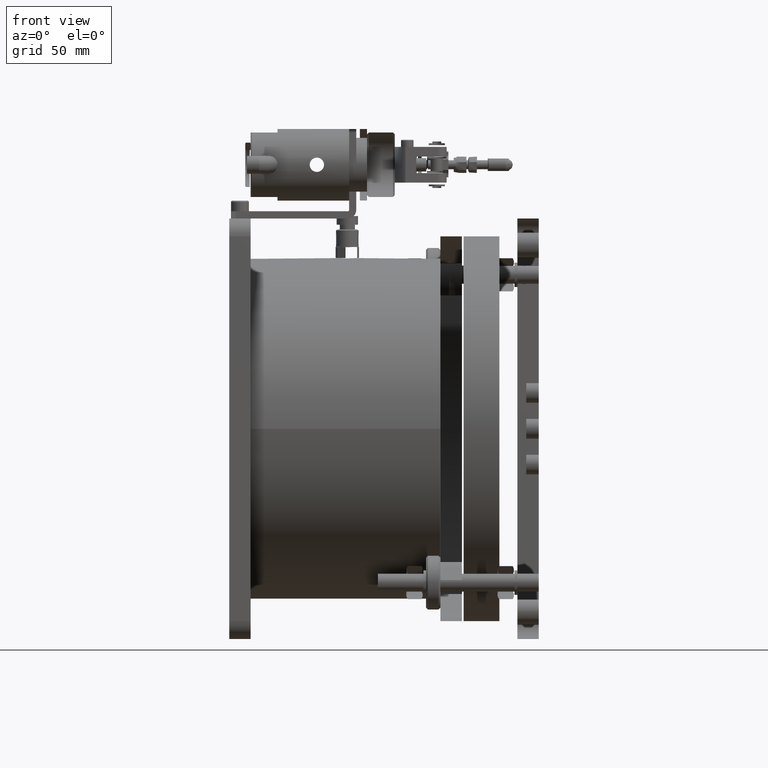
[diagram: clean part render]
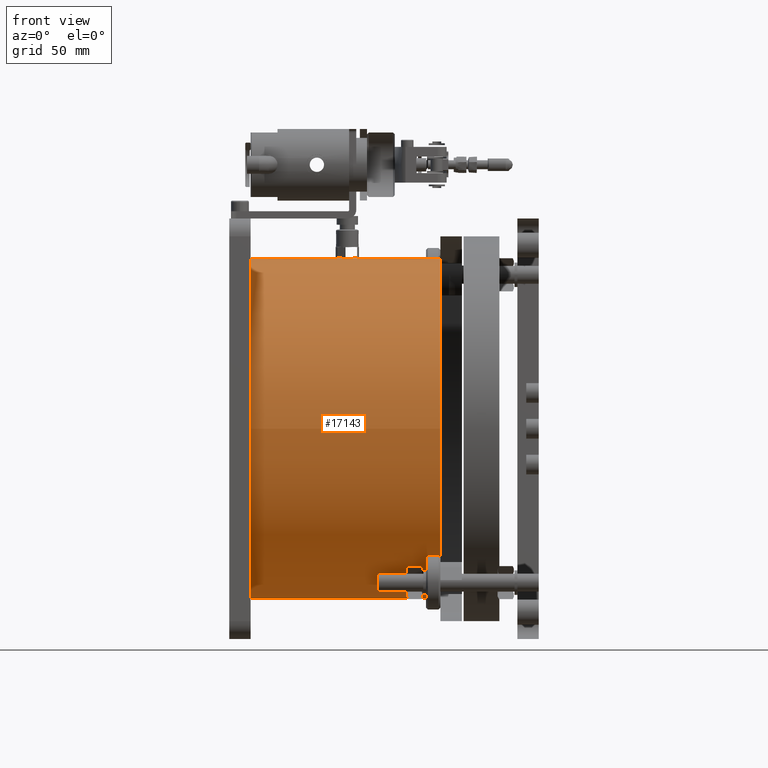
[diagram: same view with one face highlighted and labeled with its STEP entity id]
A machine part, front view. The second image highlights one B-rep face of the part: STEP entity #17143.
In plain terms, the highlighted cylindrical surface (bore or boss wall) has radius 95.35 mm, axis along (-1, -0, -0).
Its self-contained STEP definition (entity closure, byte-faithful):
#287 = CARTESIAN_POINT ( 'NONE',  ( 506.2272305884217758, 95.34008537257338389, 590.1842168335766701 ) ) ;
#419 = CARTESIAN_POINT ( 'NONE',  ( 471.3285649962770094, 95.32880450160507735, 593.6785264008909735 ) ) ;
#714 = CARTESIAN_POINT ( 'NONE',  ( 511.8858485565874616, 95.25686555371100894, 595.8393987833387655 ) ) ;
#974 = CARTESIAN_POINT ( 'NONE',  ( 512.9233767720821788, 95.30252700481172212, 594.6574488049393494 ) ) ;
#1038 = CARTESIAN_POINT ( 'NONE',  ( 467.9586205573967277, 95.30368048308380935, 588.6377040912301482 ) ) ;
#1097 = CARTESIAN_POINT ( 'NONE',  ( 470.6323716828332522, -3.483568783838560279, 686.8964837836100514 ) ) ;
#1239 = B_SPLINE_CURVE_WITH_KNOTS ( 'NONE', 3,
 ( #14142, #23447, #419, #8190, #4374, #12116, #21922, #19885, #2467, #10210, #4501, #3342, #24084, #6906, #18345, #16446, #4749, #1310 ),
 .UNSPECIFIED., .F., .F.,
 ( 4, 2, 2, 2, 2, 2, 2, 2, 4 ),
 ( 0.000000000000000000, 0.1250000000000000000, 0.2500000000000000000, 0.3750000000000000000, 0.5000000000000000000, 0.6250000000000000000, 0.7500000000000000000, 0.8750000000000000000, 1.000000000000000000 ),
 .UNSPECIFIED. ) ;
#1289 = CARTESIAN_POINT ( 'NONE',  ( 519.4299721316714340, -3.376455812154142719E-14, 591.6094016609060873 ) ) ;
#1310 = CARTESIAN_POINT ( 'NONE',  ( 463.4299721316713772, 95.34444491489904294, 592.6386362647590431 ) ) ;
#1414 = CARTESIAN_POINT ( 'NONE',  ( 464.2272305897788556, 95.34008537256275417, 590.1842168330140339 ) ) ;
#1439 = CARTESIAN_POINT ( 'NONE',  ( 470.9239069628630432, 0.9890932422857512396, 686.9555298706864050 ) ) ;
#1533 = CARTESIAN_POINT ( 'NONE',  ( 466.8984769917884705, 95.30369665933100976, 588.6382229161027908 ) ) ;
#1732 = CARTESIAN_POINT ( 'NONE',  ( 463.4299721316714340, -1.029234603853084629, 686.9538465758053007 ) ) ;
#2429 = CARTESIAN_POINT ( 'NONE',  ( 519.4299721316714340, -95.35000000000002274, 591.6094016609060873 ) ) ;
#2458 = CARTESIAN_POINT ( 'NONE',  ( 508.3883596765098787, 95.30702549985960559, 588.7398020571347388 ) ) ;
#2467 = CARTESIAN_POINT ( 'NONE',  ( 467.9638440049063206, 95.21736141317494173, 596.6369841590174019 ) ) ;
#2509 = CARTESIAN_POINT ( 'NONE',  ( 511.4540467252851386, 95.24307376637665357, 596.1283459639569173 ) ) ;
#2748 = EDGE_CURVE ( 'NONE', #4775, #11069, #3440, .T. ) ;
#3196 = DIRECTION ( 'NONE',  ( -1.000000000000000000, -4.645723651828303889E-16, -5.652748816845448892E-17 ) ) ;
#3342 = CARTESIAN_POINT ( 'NONE',  ( 465.4114346384064334, 95.24291984154038460, 596.1315489414982949 ) ) ;
#3354 = CARTESIAN_POINT ( 'NONE',  ( 469.8868087496150565, 2.171873723533278788, 686.9354014847062899 ) ) ;
#3440 = B_SPLINE_CURVE_WITH_KNOTS ( 'NONE', 3,
 ( #6886, #5104, #20612, #5354, #1414, #9172, #24554, #13095, #1533, #1038, #9288, #22904, #10701, #20365, #17040, #7391, #15120, #4982 ),
 .UNSPECIFIED., .F., .F.,
 ( 4, 2, 2, 2, 2, 2, 2, 2, 4 ),
 ( 0.000000000000000000, 0.1250000000000000000, 0.2500000000000000000, 0.3750000000000000000, 0.5000000000000000000, 0.6250000000000000000, 0.7500000000000000000, 0.8750000000000000000, 1.000000000000000000 ),
 .UNSPECIFIED. ) ;
#3510 = CARTESIAN_POINT ( 'NONE',  ( 471.4297831293740728, -1.560893718183094636, 686.9480994348200511 ) ) ;
#3808 = VERTEX_POINT ( 'NONE', #6088 ) ;
#3853 = CARTESIAN_POINT ( 'NONE',  ( 464.9790422405529284, 2.176495573608332457, 686.9352945924350706 ) ) ;
#4026 = ORIENTED_EDGE ( 'NONE', *, *, #4747, .T. ) ;
#4285 = AXIS2_PLACEMENT_3D ( 'NONE', #15680, #25112, #7704 ) ;
#4374 = CARTESIAN_POINT ( 'NONE',  ( 470.6349240465373214, 95.28720851536324687, 595.0895171938833528 ) ) ;
#4409 = CARTESIAN_POINT ( 'NONE',  ( 513.3285649963834203, 95.32880450161199803, 593.6785264006339276 ) ) ;
#4501 = CARTESIAN_POINT ( 'NONE',  ( 466.3911783938393114, 95.22283003441678773, 596.5364937247941270 ) ) ;
#4638 = B_SPLINE_CURVE_WITH_KNOTS ( 'NONE', 3,
 ( #12107, #8561, #16307, #6024, #287, #13888, #21669, #2458, #13762, #11869, #8055, #10201, #16813, #18852, #14388, #22412, #8699, #6784 ),
 .UNSPECIFIED., .F., .F.,
 ( 4, 2, 2, 2, 2, 2, 2, 2, 4 ),
 ( 0.000000000000000000, 0.1250000000000000000, 0.2500000000000000000, 0.3750000000000000000, 0.5000000000000000000, 0.6250000000000000000, 0.7500000000000000000, 0.8750000000000000000, 1.000000000000000000 ),
 .UNSPECIFIED. ) ;
#4671 = CARTESIAN_POINT ( 'NONE',  ( 513.4299721316713203, 95.33872454962690313, 593.1685495124683030 ) ) ;
#4747 = EDGE_CURVE ( 'NONE', #15046, #11961, #24596, .T. ) ;
#4749 = CARTESIAN_POINT ( 'NONE',  ( 463.4299721316714340, 95.33870312975845707, 593.1705337689872977 ) ) ;
#4775 = VERTEX_POINT ( 'NONE', #23985 ) ;
#4926 = EDGE_CURVE ( 'NONE', #23657, #23657, #13191, .T. ) ;
#4982 = CARTESIAN_POINT ( 'NONE',  ( 471.4299721316713772, 95.34444491489904294, 592.6386362647590431 ) ) ;
#5104 = CARTESIAN_POINT ( 'NONE',  ( 463.4299721316713772, 95.35017434631605227, 592.1078831632898982 ) ) ;
#5256 = CARTESIAN_POINT ( 'NONE',  ( 469.4544924424077976, 2.461579334480986869, 686.9278393108232876 ) ) ;
#5354 = CARTESIAN_POINT ( 'NONE',  ( 463.9379388685981667, 95.34609297692958307, 590.6169173136520385 ) ) ;
#5364 = CIRCLE ( 'NONE', #19570, 95.34999999999999432 ) ;
#5430 = CARTESIAN_POINT ( 'NONE',  ( 505.4299721316713772, 95.34444491489905715, 592.6386362647590431 ) ) ;
#6024 = CARTESIAN_POINT ( 'NONE',  ( 505.9379388696588649, 95.34609297691982022, 590.6169173117964419 ) ) ;
#6088 = CARTESIAN_POINT ( 'NONE',  ( 413.4299721316714908, -95.35000000000007958, 591.6094016609060873 ) ) ;
#6705 = B_SPLINE_CURVE_WITH_KNOTS ( 'NONE', 3,
 ( #15015, #15401, #23178, #13503, #21275, #3853, #20765, #9684, #24582, #7168, #22677, #5256, #3354, #11107, #1439, #16947, #21900, #17955 ),
 .UNSPECIFIED., .F., .F.,
 ( 4, 2, 2, 2, 2, 2, 2, 2, 4 ),
 ( 0.000000000000000000, 0.1249999999999999167, 0.2499999999999998335, 0.3749999999999998335, 0.4999999999999998890, 0.6249999999999998890, 0.7499999999999998890, 0.8750000000000000000, 1.000000000000000000 ),
 .UNSPECIFIED. ) ;
#6784 = CARTESIAN_POINT ( 'NONE',  ( 513.4299721316714340, 95.34444491489905715, 592.6386362647590431 ) ) ;
#6886 = CARTESIAN_POINT ( 'NONE',  ( 463.4299721316713772, 95.34444491489904294, 592.6386362647590431 ) ) ;
#6906 = CARTESIAN_POINT ( 'NONE',  ( 464.2286039157403366, 95.28703490553813538, 595.0941934759268861 ) ) ;
#7080 = CARTESIAN_POINT ( 'NONE',  ( 469.4481092164074880, -4.522325930600010757, 686.8523129581913054 ) ) ;
#7168 = CARTESIAN_POINT ( 'NONE',  ( 467.9644152945096494, 2.970972533480765509, 686.9131047496144902 ) ) ;
#7324 = CARTESIAN_POINT ( 'NONE',  ( 471.4299718782690434, -1.030658325071345915, 686.9538311962332955 ) ) ;
#7391 = CARTESIAN_POINT ( 'NONE',  ( 471.3284980189881708, 95.35125857999666721, 591.5980388060507948 ) ) ;
#7463 = CARTESIAN_POINT ( 'NONE',  ( 466.3878104963110331, -4.926159053296679247, 686.8322805963100564 ) ) ;
#7704 = DIRECTION ( 'NONE',  ( 0.000000000000000000, -1.000000000000000000, 0.000000000000000000 ) ) ;
#8055 = CARTESIAN_POINT ( 'NONE',  ( 510.4688009217263129, 95.30700138791777931, 588.7390038224536966 ) ) ;
#8190 = CARTESIAN_POINT ( 'NONE',  ( 470.9233767721888171, 95.30252700481855754, 594.6574488046819624 ) ) ;
#8363 = CARTESIAN_POINT ( 'NONE',  ( 507.4114346375626496, 95.24291984155770763, 596.1315489411497310 ) ) ;
#8389 = DIRECTION ( 'NONE',  ( 5.821830228763275481E-16, -1.000000000000000000, 0.000000000000000000 ) ) ;
#8561 = CARTESIAN_POINT ( 'NONE',  ( 505.4299721316713772, 95.35017434632366928, 592.1078831625862904 ) ) ;
#8614 = CARTESIAN_POINT ( 'NONE',  ( 505.9401704591016937, 95.30232061101406771, 594.6641518544640803 ) ) ;
#8699 = CARTESIAN_POINT ( 'NONE',  ( 513.4299721316716614, 95.35017014061355667, 592.1082727638481629 ) ) ;
#8862 = CARTESIAN_POINT ( 'NONE',  ( 466.8980653645520533, -5.027885252978316011, 686.8267470866580879 ) ) ;
#9052 = DIRECTION ( 'NONE',  ( 0.000000000000000000, -1.000000000000000000, 0.000000000000000000 ) ) ;
#9172 = CARTESIAN_POINT ( 'NONE',  ( 464.9768823971682536, 95.32593182093114592, 589.4346021040752248 ) ) ;
#9288 = CARTESIAN_POINT ( 'NONE',  ( 468.4688009209471034, 95.30700138789595144, 588.7390038216746007 ) ) ;
#9352 = CARTESIAN_POINT ( 'NONE',  ( 469.8816004070379790, -4.233343192373174801, 686.8661183602878282 ) ) ;
#9429 = EDGE_CURVE ( 'NONE', #14537, #16681, #6705, .T. ) ;
#9684 = CARTESIAN_POINT ( 'NONE',  ( 466.3922109618487184, 2.870732411434197662, 686.9163928389477860 ) ) ;
#10076 = ORIENTED_EDGE ( 'NONE', *, *, #4926, .T. ) ;
#10201 = CARTESIAN_POINT ( 'NONE',  ( 511.4494012937805678, 95.31835800894832289, 589.1447873329613003 ) ) ;
#10210 = CARTESIAN_POINT ( 'NONE',  ( 466.9027402260875306, 95.21730737789775390, 596.6380074284550119 ) ) ;
#10701 = CARTESIAN_POINT ( 'NONE',  ( 469.8823687421921136, 95.32591958489128103, 589.4339827836631684 ) ) ;
#10944 = FACE_BOUND ( 'NONE', #14625, .T. ) ;
#11069 = VERTEX_POINT ( 'NONE', #13886 ) ;
#11107 = CARTESIAN_POINT ( 'NONE',  ( 470.6354712155451239, 1.421599398891101540, 686.9495418591833413 ) ) ;
#11378 = CARTESIAN_POINT ( 'NONE',  ( 463.5315924437289254, -2.070485578673760596, 686.9381802901875744 ) ) ;
#11869 = CARTESIAN_POINT ( 'NONE',  ( 509.9586205562947043, 95.30368048308383777, 588.6377040912307166 ) ) ;
#11961 = VERTEX_POINT ( 'NONE', #5430 ) ;
#12038 = EDGE_CURVE ( 'NONE', #16681, #14537, #13646, .T. ) ;
#12107 = CARTESIAN_POINT ( 'NONE',  ( 505.4299721316713772, 95.34444491489905715, 592.6386362647590431 ) ) ;
#12116 = CARTESIAN_POINT ( 'NONE',  ( 469.8858485572336576, 95.25686555373107467, 595.8393987828422951 ) ) ;
#12153 = CARTESIAN_POINT ( 'NONE',  ( 505.4299721316713772, 95.34444491489905715, 592.6386362647590431 ) ) ;
#12289 = CARTESIAN_POINT ( 'NONE',  ( 506.9784919632983815, 95.25671622187633147, 595.8426993953733017 ) ) ;
#12504 = ORIENTED_EDGE ( 'NONE', *, *, #9429, .T. ) ;
#12552 = DIRECTION ( 'NONE',  ( 1.000000000000000000, 4.645723651828303889E-16, 5.652748816845448892E-17 ) ) ;
#12651 = CARTESIAN_POINT ( 'NONE',  ( 513.4299721316714340, 95.34444491489905715, 592.6386362647590431 ) ) ;
#13095 = CARTESIAN_POINT ( 'NONE',  ( 466.3883596765098787, 95.30702549985959138, 588.7398020571348525 ) ) ;
#13191 = CIRCLE ( 'NONE', #4285, 95.34999999999999432 ) ;
#13503 = CARTESIAN_POINT ( 'NONE',  ( 463.9394908145150112, 0.9950889160062802441, 686.9554653018400359 ) ) ;
#13646 = B_SPLINE_CURVE_WITH_KNOTS ( 'NONE', 3,
 ( #7324, #3510, #20551, #19023, #1097, #9352, #7080, #17110, #24881, #8862, #7463, #15188, #24363, #22971, #21048, #11378, #16741, #1732 ),
 .UNSPECIFIED., .F., .F.,
 ( 4, 2, 2, 2, 2, 2, 2, 2, 4 ),
 ( 0.000000000000000000, 0.1250000000000000278, 0.2500000000000000555, 0.3750000000000001110, 0.5000000000000001110, 0.6250000000000001110, 0.7500000000000002220, 0.8750000000000001110, 1.000000000000000000 ),
 .UNSPECIFIED. ) ;
#13762 = CARTESIAN_POINT ( 'NONE',  ( 508.8984769928907212, 95.30369665933099554, 588.6382229161021087 ) ) ;
#13886 = CARTESIAN_POINT ( 'NONE',  ( 471.4299721316713772, 95.34444491489904294, 592.6386362647590431 ) ) ;
#13888 = CARTESIAN_POINT ( 'NONE',  ( 506.9768823985251061, 95.32593182092053041, 589.4346021035125887 ) ) ;
#14014 = CARTESIAN_POINT ( 'NONE',  ( 513.4299721316714340, 95.34444491489905715, 592.6386362647590431 ) ) ;
#14142 = CARTESIAN_POINT ( 'NONE',  ( 471.4299721316713772, 95.34444491489904294, 592.6386362647590431 ) ) ;
#14388 = CARTESIAN_POINT ( 'NONE',  ( 512.9226015682554589, 95.34610479145781881, 590.6179668415504693 ) ) ;
#14537 = VERTEX_POINT ( 'NONE', #16415 ) ;
#14625 = EDGE_LOOP ( 'NONE', ( #23863, #12504 ) ) ;
#14986 = FACE_BOUND ( 'NONE', #17009, .T. ) ;
#15015 = CARTESIAN_POINT ( 'NONE',  ( 463.4299721316714340, -1.029234603853084629, 686.9538465758053007 ) ) ;
#15046 = VERTEX_POINT ( 'NONE', #14014 ) ;
#15120 = CARTESIAN_POINT ( 'NONE',  ( 471.4299721316714340, 95.35017014062252372, 592.1082727630122235 ) ) ;
#15188 = CARTESIAN_POINT ( 'NONE',  ( 465.4088675950624747, -4.520624229369735403, 686.8523944338227238 ) ) ;
#15401 = CARTESIAN_POINT ( 'NONE',  ( 463.4299721316714908, -0.4973436565077955507, 686.9595882901649020 ) ) ;
#15680 = CARTESIAN_POINT ( 'NONE',  ( 519.4299721316714340, -3.376455812154140826E-14, 591.6094016609060873 ) ) ;
#16099 = CARTESIAN_POINT ( 'NONE',  ( 505.5320117971574518, 95.32873649436868391, 593.6820354869313405 ) ) ;
#16307 = CARTESIAN_POINT ( 'NONE',  ( 505.5318641612719262, 95.35125750772516540, 591.5966406984459809 ) ) ;
#16359 = CARTESIAN_POINT ( 'NONE',  ( 510.4743944152891686, 95.22290552094682425, 596.5350713849513795 ) ) ;
#16415 = CARTESIAN_POINT ( 'NONE',  ( 463.4299721316714340, -1.029234603853084629, 686.9538465758053007 ) ) ;
#16446 = CARTESIAN_POINT ( 'NONE',  ( 463.5320117971574518, 95.32873649437840413, 593.6820354865682248 ) ) ;
#16484 = CARTESIAN_POINT ( 'NONE',  ( 509.9638440049063774, 95.21736141317495594, 596.6369841590172882 ) ) ;
#16681 = VERTEX_POINT ( 'NONE', #19323 ) ;
#16741 = CARTESIAN_POINT ( 'NONE',  ( 463.4299721316714908, -1.559994229523427256, 686.9481170739602476 ) ) ;
#16813 = CARTESIAN_POINT ( 'NONE',  ( 511.8823687416008852, 95.32591958488013972, 589.4339827830721106 ) ) ;
#16947 = CARTESIAN_POINT ( 'NONE',  ( 471.3289853120377870, 0.009371936181396065685, 686.9606595561466520 ) ) ;
#17009 = EDGE_LOOP ( 'NONE', ( #22916, #17225 ) ) ;
#17040 = CARTESIAN_POINT ( 'NONE',  ( 470.9226015682554021, 95.34610479146219575, 590.6179668423864086 ) ) ;
#17110 = CARTESIAN_POINT ( 'NONE',  ( 468.4684421051153436, -4.927212717108908180, 686.8322253905425896 ) ) ;
#17143 = ADVANCED_FACE ( 'NONE', ( #24301, #14986, #20869, #22278, #10944 ), #18705, .T. ) ;
#17166 = AXIS2_PLACEMENT_3D ( 'NONE', #1289, #3196, #9052 ) ;
#17225 = ORIENTED_EDGE ( 'NONE', *, *, #2748, .T. ) ;
#17575 = ORIENTED_EDGE ( 'NONE', *, *, #22153, .T. ) ;
#17955 = CARTESIAN_POINT ( 'NONE',  ( 471.4299718782690434, -1.030658325071345915, 686.9538311962332955 ) ) ;
#18258 = CARTESIAN_POINT ( 'NONE',  ( 508.3911783946831520, 95.22283003439949312, 596.5364937251428046 ) ) ;
#18345 = CARTESIAN_POINT ( 'NONE',  ( 463.9401704591015800, 95.30232061100429064, 594.6641518548273098 ) ) ;
#18417 = EDGE_LOOP ( 'NONE', ( #4026, #17575 ) ) ;
#18705 = CYLINDRICAL_SURFACE ( 'NONE', #17166, 95.34999999999999432 ) ;
#18852 = CARTESIAN_POINT ( 'NONE',  ( 512.6331312433642324, 95.34009240640823180, 590.1845606400873976 ) ) ;
#19023 = CARTESIAN_POINT ( 'NONE',  ( 470.9218624346629554, -3.050887074011628286, 686.9118412249406447 ) ) ;
#19323 = CARTESIAN_POINT ( 'NONE',  ( 471.4299718782690434, -1.030658325071345915, 686.9538311962332955 ) ) ;
#19570 = AXIS2_PLACEMENT_3D ( 'NONE', #20082, #12552, #8389 ) ;
#19885 = CARTESIAN_POINT ( 'NONE',  ( 468.4743944158402655, 95.22290552094685268, 596.5350713849509248 ) ) ;
#20082 = CARTESIAN_POINT ( 'NONE',  ( 413.4299721316714340, -8.300922883092143323E-14, 591.6094016609060873 ) ) ;
#20138 = EDGE_CURVE ( 'NONE', #3808, #3808, #5364, .T. ) ;
#20293 = CARTESIAN_POINT ( 'NONE',  ( 506.2286039156472839, 95.28703490556185329, 595.0941934753411715 ) ) ;
#20365 = CARTESIAN_POINT ( 'NONE',  ( 470.6331312427727198, 95.34009240639706206, 590.1845606394961123 ) ) ;
#20551 = CARTESIAN_POINT ( 'NONE',  ( 471.3282786920887588, -2.070631182689025351, 686.9381768827673795 ) ) ;
#20612 = CARTESIAN_POINT ( 'NONE',  ( 463.5318641623325107, 95.35125750771533149, 591.5966406965901569 ) ) ;
#20765 = CARTESIAN_POINT ( 'NONE',  ( 465.4113943666678779, 2.465073656362168908, 686.9277476592399125 ) ) ;
#20869 = FACE_BOUND ( 'NONE', #18417, .T. ) ;
#21048 = CARTESIAN_POINT ( 'NONE',  ( 463.9380736919581523, -3.050836678841846616, 686.9118430831545083 ) ) ;
#21275 = CARTESIAN_POINT ( 'NONE',  ( 464.2285574618558712, 1.426973032684046849, 686.9494601050840856 ) ) ;
#21669 = CARTESIAN_POINT ( 'NONE',  ( 507.4093028529717913, 95.31838053104590358, 589.1456556399896272 ) ) ;
#21900 = CARTESIAN_POINT ( 'NONE',  ( 471.4301605589774340, -0.5006144825958155353, 686.9595608870139358 ) ) ;
#21922 = CARTESIAN_POINT ( 'NONE',  ( 469.4540467247338142, 95.24307376637662514, 596.1283459639578268 ) ) ;
#21958 = CARTESIAN_POINT ( 'NONE',  ( 508.9027402260874169, 95.21730737789779653, 596.6380074284548982 ) ) ;
#22029 = EDGE_LOOP ( 'NONE', ( #10076 ) ) ;
#22153 = EDGE_CURVE ( 'NONE', #11961, #15046, #4638, .T. ) ;
#22278 = FACE_OUTER_BOUND ( 'NONE', #22029, .T. ) ;
#22412 = CARTESIAN_POINT ( 'NONE',  ( 513.3284980189881708, 95.35125858000111521, 591.5980388068866205 ) ) ;
#22677 = CARTESIAN_POINT ( 'NONE',  ( 468.4755975630084777, 2.868501816225272893, 686.9164613478536694 ) ) ;
#22716 = EDGE_CURVE ( 'NONE', #11069, #4775, #1239, .T. ) ;
#22904 = CARTESIAN_POINT ( 'NONE',  ( 469.4494012945600048, 95.31835800897013655, 589.1447873337405099 ) ) ;
#22916 = ORIENTED_EDGE ( 'NONE', *, *, #22716, .T. ) ;
#22971 = CARTESIAN_POINT ( 'NONE',  ( 464.2268902338657881, -3.482618100643614767, 686.8965177399222739 ) ) ;
#23178 = CARTESIAN_POINT ( 'NONE',  ( 463.5328277423739678, 0.01621806695352044636, 686.9606564546744494 ) ) ;
#23414 = EDGE_LOOP ( 'NONE', ( #24143 ) ) ;
#23447 = CARTESIAN_POINT ( 'NONE',  ( 471.4299721316712635, 95.33872454962690313, 593.1685495124686440 ) ) ;
#23657 = VERTEX_POINT ( 'NONE', #2429 ) ;
#23863 = ORIENTED_EDGE ( 'NONE', *, *, #12038, .T. ) ;
#23985 = CARTESIAN_POINT ( 'NONE',  ( 463.4299721316713772, 95.34444491489904294, 592.6386362647590431 ) ) ;
#24084 = CARTESIAN_POINT ( 'NONE',  ( 464.9784919632052720, 95.25671622190003518, 595.8426993947874735 ) ) ;
#24121 = CARTESIAN_POINT ( 'NONE',  ( 505.4299721316713772, 95.33870312975453487, 593.1705337693507545 ) ) ;
#24143 = ORIENTED_EDGE ( 'NONE', *, *, #20138, .T. ) ;
#24236 = CARTESIAN_POINT ( 'NONE',  ( 512.6349240471837447, 95.28720851538335523, 595.0895171933867687 ) ) ;
#24301 = FACE_OUTER_BOUND ( 'NONE', #23414, .T. ) ;
#24363 = CARTESIAN_POINT ( 'NONE',  ( 464.9767195586870230, -4.231989468049830450, 686.8661777171695348 ) ) ;
#24554 = CARTESIAN_POINT ( 'NONE',  ( 465.4093028529719049, 95.31838053104588937, 589.1456556399896272 ) ) ;
#24582 = CARTESIAN_POINT ( 'NONE',  ( 466.9036079638314618, 2.971900206687097867, 686.9130758260549783 ) ) ;
#24596 = B_SPLINE_CURVE_WITH_KNOTS ( 'NONE', 3,
 ( #12651, #4671, #4409, #974, #24236, #714, #2509, #16359, #16484, #21958, #18258, #8363, #12289, #20293, #8614, #16099, #24121, #12153 ),
 .UNSPECIFIED., .F., .F.,
 ( 4, 2, 2, 2, 2, 2, 2, 2, 4 ),
 ( 0.000000000000000000, 0.1250000000000000000, 0.2500000000000000000, 0.3750000000000000000, 0.5000000000000000000, 0.6250000000000000000, 0.7500000000000000000, 0.8750000000000000000, 1.000000000000000000 ),
 .UNSPECIFIED. ) ;
#24881 = CARTESIAN_POINT ( 'NONE',  ( 467.9576092203482176, -5.028304628044462099, 686.8267249409252599 ) ) ;
#25112 = DIRECTION ( 'NONE',  ( -1.000000000000000000, -4.645723651828303889E-16, -5.652748816845448892E-17 ) ) ;